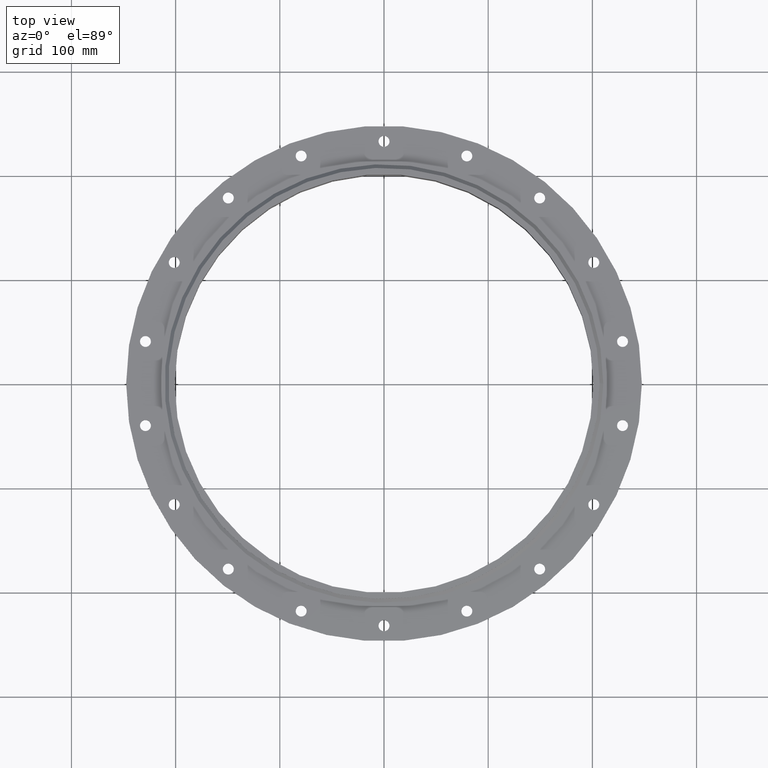
[diagram: clean part render]
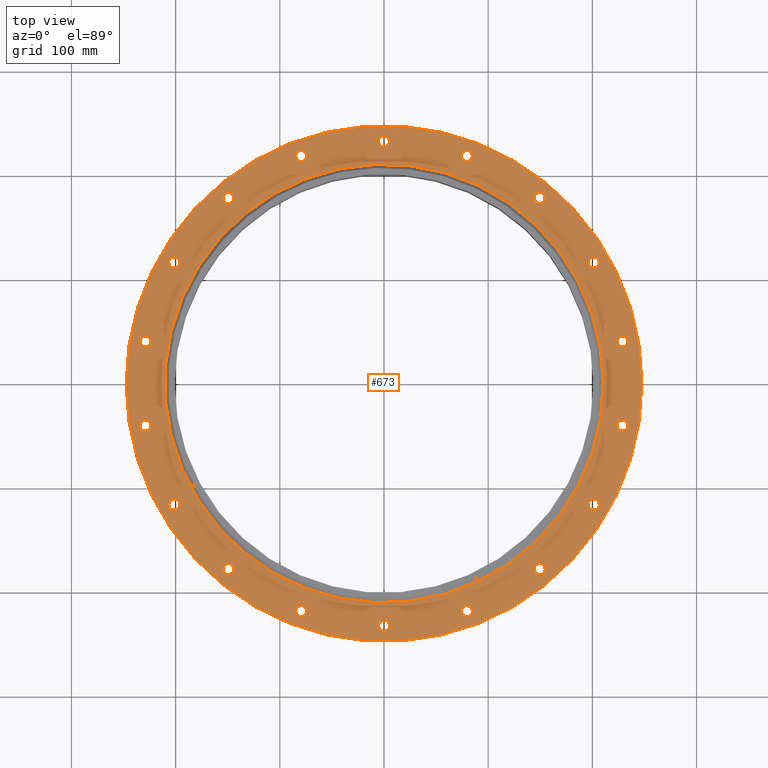
[diagram: same view with one face highlighted and labeled with its STEP entity id]
A machine part, top view. The second image highlights one B-rep face of the part: STEP entity #673.
In plain terms, the highlighted planar face has unit normal (0, 0, 1).
Its self-contained STEP definition (entity closure, byte-faithful):
#84=CARTESIAN_POINT('',(-144.19811925212042,178.10533302516245,-6.000000000000002));
#85=VERTEX_POINT('',#84);
#86=CARTESIAN_POINT('',(-149.44811925212042,178.10533302516245,-5.999999999999943));
#87=DIRECTION('',(0.0,0.0,-1.0));
#88=DIRECTION('',(1.0,0.0,0.0));
#89=AXIS2_PLACEMENT_3D('',#86,#87,#88);
#90=CIRCLE('',#89,5.25);
#91=EDGE_CURVE('',#85,#85,#90,.T.);
#112=CARTESIAN_POINT('',(-223.7178025753384,40.373201307561331,-6.000000000000002));
#113=VERTEX_POINT('',#112);
#114=CARTESIAN_POINT('',(-228.96780257533837,40.373201307561331,-5.999999999999943));
#115=DIRECTION('',(0.0,0.0,-1.0));
#116=DIRECTION('',(1.0,0.0,0.0));
#117=AXIS2_PLACEMENT_3D('',#114,#115,#116);
#118=CIRCLE('',#117,5.25);
#119=EDGE_CURVE('',#113,#113,#118,.T.);
#140=CARTESIAN_POINT('',(-196.1009063798821,-116.24999999999997,-6.000000000000002));
#141=VERTEX_POINT('',#140);
#142=CARTESIAN_POINT('',(-201.3509063798821,-116.24999999999997,-5.999999999999943));
#143=DIRECTION('',(0.0,0.0,-1.0));
#144=DIRECTION('',(1.0,0.0,0.0));
#145=AXIS2_PLACEMENT_3D('',#142,#143,#144);
#146=CIRCLE('',#145,5.25);
#147=EDGE_CURVE('',#141,#141,#146,.T.);
#168=CARTESIAN_POINT('',(-74.269683323218061,-218.47853433272365,-6.000000000000002));
#169=VERTEX_POINT('',#168);
#170=CARTESIAN_POINT('',(-79.519683323218061,-218.47853433272365,-5.999999999999943));
#171=DIRECTION('',(0.0,0.0,-1.0));
#172=DIRECTION('',(1.0,0.0,0.0));
#173=AXIS2_PLACEMENT_3D('',#170,#171,#172);
#174=CIRCLE('',#173,5.25);
#175=EDGE_CURVE('',#169,#169,#174,.T.);
#196=CARTESIAN_POINT('',(84.769683323217947,-218.47853433272365,-6.000000000000002));
#197=VERTEX_POINT('',#196);
#198=CARTESIAN_POINT('',(79.519683323217947,-218.47853433272365,-5.999999999999943));
#199=DIRECTION('',(0.0,0.0,-1.0));
#200=DIRECTION('',(1.0,0.0,0.0));
#201=AXIS2_PLACEMENT_3D('',#198,#199,#200);
#202=CIRCLE('',#201,5.25);
#203=EDGE_CURVE('',#197,#197,#202,.T.);
#224=CARTESIAN_POINT('',(206.60090637988202,-116.25000000000014,-6.000000000000002));
#225=VERTEX_POINT('',#224);
#226=CARTESIAN_POINT('',(201.35090637988202,-116.25000000000014,-5.999999999999943));
#227=DIRECTION('',(0.0,0.0,-1.0));
#228=DIRECTION('',(1.0,0.0,0.0));
#229=AXIS2_PLACEMENT_3D('',#226,#227,#228);
#230=CIRCLE('',#229,5.25);
#231=EDGE_CURVE('',#225,#225,#230,.T.);
#252=CARTESIAN_POINT('',(234.21780257533837,40.373201307561246,-6.000000000000002));
#253=VERTEX_POINT('',#252);
#254=CARTESIAN_POINT('',(228.96780257533837,40.373201307561246,-5.999999999999943));
#255=DIRECTION('',(0.0,0.0,-1.0));
#256=DIRECTION('',(1.0,0.0,0.0));
#257=AXIS2_PLACEMENT_3D('',#254,#255,#256);
#258=CIRCLE('',#257,5.25);
#259=EDGE_CURVE('',#253,#253,#258,.T.);
#280=CARTESIAN_POINT('',(154.69811925212045,178.10533302516234,-6.000000000000002));
#281=VERTEX_POINT('',#280);
#282=CARTESIAN_POINT('',(149.44811925212042,178.10533302516234,-5.999999999999943));
#283=DIRECTION('',(0.0,0.0,-1.0));
#284=DIRECTION('',(1.0,0.0,0.0));
#285=AXIS2_PLACEMENT_3D('',#282,#283,#284);
#286=CIRCLE('',#285,5.25);
#287=EDGE_CURVE('',#281,#281,#286,.T.);
#308=CARTESIAN_POINT('',(5.25,232.5,-6.000000000000002));
#309=VERTEX_POINT('',#308);
#310=CARTESIAN_POINT('',(0.0,232.5,-5.999999999999943));
#311=DIRECTION('',(0.0,0.0,-1.0));
#312=DIRECTION('',(1.0,0.0,0.0));
#313=AXIS2_PLACEMENT_3D('',#310,#311,#312);
#314=CIRCLE('',#313,5.25);
#315=EDGE_CURVE('',#309,#309,#314,.T.);
#336=CARTESIAN_POINT('',(84.769683323218118,218.47853433272365,-6.000000000000002));
#337=VERTEX_POINT('',#336);
#338=CARTESIAN_POINT('',(79.519683323218118,218.47853433272365,-5.999999999999943));
#339=DIRECTION('',(0.0,0.0,-1.0));
#340=DIRECTION('',(1.0,0.0,0.0));
#341=AXIS2_PLACEMENT_3D('',#338,#339,#340);
#342=CIRCLE('',#341,5.25);
#343=EDGE_CURVE('',#337,#337,#342,.T.);
#364=CARTESIAN_POINT('',(206.60090637988202,116.25000000000006,-6.000000000000002));
#365=VERTEX_POINT('',#364);
#366=CARTESIAN_POINT('',(201.35090637988202,116.25000000000006,-5.999999999999943));
#367=DIRECTION('',(0.0,0.0,-1.0));
#368=DIRECTION('',(1.0,0.0,0.0));
#369=AXIS2_PLACEMENT_3D('',#366,#367,#368);
#370=CIRCLE('',#369,5.25);
#371=EDGE_CURVE('',#365,#365,#370,.T.);
#392=CARTESIAN_POINT('',(234.21780257533837,-40.373201307561295,-6.000000000000002));
#393=VERTEX_POINT('',#392);
#394=CARTESIAN_POINT('',(228.96780257533837,-40.373201307561295,-5.999999999999943));
#395=DIRECTION('',(0.0,0.0,-1.0));
#396=DIRECTION('',(1.0,0.0,0.0));
#397=AXIS2_PLACEMENT_3D('',#394,#395,#396);
#398=CIRCLE('',#397,5.25);
#399=EDGE_CURVE('',#393,#393,#398,.T.);
#420=CARTESIAN_POINT('',(154.69811925212045,-178.10533302516245,-6.000000000000002));
#421=VERTEX_POINT('',#420);
#422=CARTESIAN_POINT('',(149.44811925212042,-178.10533302516245,-5.999999999999943));
#423=DIRECTION('',(0.0,0.0,-1.0));
#424=DIRECTION('',(1.0,0.0,0.0));
#425=AXIS2_PLACEMENT_3D('',#422,#423,#424);
#426=CIRCLE('',#425,5.25);
#427=EDGE_CURVE('',#421,#421,#426,.T.);
#448=CARTESIAN_POINT('',(5.249999999999973,-232.5,-6.000000000000002));
#449=VERTEX_POINT('',#448);
#450=CARTESIAN_POINT('',(-2.664535E-014,-232.5,-5.999999999999943));
#451=DIRECTION('',(0.0,0.0,-1.0));
#452=DIRECTION('',(1.0,0.0,0.0));
#453=AXIS2_PLACEMENT_3D('',#450,#451,#452);
#454=CIRCLE('',#453,5.25);
#455=EDGE_CURVE('',#449,#449,#454,.T.);
#476=CARTESIAN_POINT('',(-144.19811925212042,-178.10533302516237,-6.000000000000002));
#477=VERTEX_POINT('',#476);
#478=CARTESIAN_POINT('',(-149.44811925212042,-178.10533302516237,-5.999999999999943));
#479=DIRECTION('',(0.0,0.0,-1.0));
#480=DIRECTION('',(1.0,0.0,0.0));
#481=AXIS2_PLACEMENT_3D('',#478,#479,#480);
#482=CIRCLE('',#481,5.25);
#483=EDGE_CURVE('',#477,#477,#482,.T.);
#504=CARTESIAN_POINT('',(-223.7178025753384,-40.373201307561295,-6.000000000000002));
#505=VERTEX_POINT('',#504);
#506=CARTESIAN_POINT('',(-228.96780257533837,-40.373201307561295,-5.999999999999943));
#507=DIRECTION('',(0.0,0.0,-1.0));
#508=DIRECTION('',(1.0,0.0,0.0));
#509=AXIS2_PLACEMENT_3D('',#506,#507,#508);
#510=CIRCLE('',#509,5.25);
#511=EDGE_CURVE('',#505,#505,#510,.T.);
#532=CARTESIAN_POINT('',(-196.10090637988205,116.25000000000006,-6.000000000000002));
#533=VERTEX_POINT('',#532);
#534=CARTESIAN_POINT('',(-201.35090637988202,116.25000000000006,-5.999999999999943));
#535=DIRECTION('',(0.0,0.0,-1.0));
#536=DIRECTION('',(1.0,0.0,0.0));
#537=AXIS2_PLACEMENT_3D('',#534,#535,#536);
#538=CIRCLE('',#537,5.25);
#539=EDGE_CURVE('',#533,#533,#538,.T.);
#560=CARTESIAN_POINT('',(-74.269683323217961,218.47853433272365,-6.000000000000002));
#561=VERTEX_POINT('',#560);
#562=CARTESIAN_POINT('',(-79.519683323217961,218.47853433272365,-5.999999999999943));
#563=DIRECTION('',(0.0,0.0,-1.0));
#564=DIRECTION('',(1.0,0.0,0.0));
#565=AXIS2_PLACEMENT_3D('',#562,#563,#564);
#566=CIRCLE('',#565,5.25);
#567=EDGE_CURVE('',#561,#561,#566,.T.);
#577=CARTESIAN_POINT('',(210.50000000000011,2.577882E-014,-6.000000000000002));
#578=VERTEX_POINT('',#577);
#579=CARTESIAN_POINT('',(0.0,0.0,-6.000000000000002));
#580=DIRECTION('',(0.0,0.0,1.0));
#581=DIRECTION('',(-1.0,0.0,0.0));
#582=AXIS2_PLACEMENT_3D('',#579,#580,#581);
#583=CIRCLE('',#582,210.50000000000011);
#584=EDGE_CURVE('',#578,#578,#583,.T.);
#600=CARTESIAN_POINT('',(-1.783719E-014,0.0,-6.000000000000002));
#601=DIRECTION('',(0.0,0.0,1.0));
#602=DIRECTION('',(1.0,0.0,0.0));
#603=AXIS2_PLACEMENT_3D('',#600,#601,#602);
#604=PLANE('',#603);
#605=CARTESIAN_POINT('',(247.5,3.031001E-014,-6.000000000000002));
#606=VERTEX_POINT('',#605);
#607=CARTESIAN_POINT('',(0.0,0.0,-6.000000000000002));
#608=DIRECTION('',(0.0,0.0,1.0));
#609=DIRECTION('',(-1.0,0.0,0.0));
#610=AXIS2_PLACEMENT_3D('',#607,#608,#609);
#611=CIRCLE('',#610,247.5);
#612=EDGE_CURVE('',#606,#606,#611,.T.);
#613=ORIENTED_EDGE('',*,*,#612,.T.);
#614=EDGE_LOOP('',(#613));
#615=FACE_OUTER_BOUND('',#614,.T.);
#616=ORIENTED_EDGE('',*,*,#91,.T.);
#617=EDGE_LOOP('',(#616));
#618=FACE_BOUND('',#617,.T.);
#619=ORIENTED_EDGE('',*,*,#119,.T.);
#620=EDGE_LOOP('',(#619));
#621=FACE_BOUND('',#620,.T.);
#622=ORIENTED_EDGE('',*,*,#147,.T.);
#623=EDGE_LOOP('',(#622));
#624=FACE_BOUND('',#623,.T.);
#625=ORIENTED_EDGE('',*,*,#175,.T.);
#626=EDGE_LOOP('',(#625));
#627=FACE_BOUND('',#626,.T.);
#628=ORIENTED_EDGE('',*,*,#203,.T.);
#629=EDGE_LOOP('',(#628));
#630=FACE_BOUND('',#629,.T.);
#631=ORIENTED_EDGE('',*,*,#231,.T.);
#632=EDGE_LOOP('',(#631));
#633=FACE_BOUND('',#632,.T.);
#634=ORIENTED_EDGE('',*,*,#259,.T.);
#635=EDGE_LOOP('',(#634));
#636=FACE_BOUND('',#635,.T.);
#637=ORIENTED_EDGE('',*,*,#287,.T.);
#638=EDGE_LOOP('',(#637));
#639=FACE_BOUND('',#638,.T.);
#640=ORIENTED_EDGE('',*,*,#315,.T.);
#641=EDGE_LOOP('',(#640));
#642=FACE_BOUND('',#641,.T.);
#643=ORIENTED_EDGE('',*,*,#343,.T.);
#644=EDGE_LOOP('',(#643));
#645=FACE_BOUND('',#644,.T.);
#646=ORIENTED_EDGE('',*,*,#371,.T.);
#647=EDGE_LOOP('',(#646));
#648=FACE_BOUND('',#647,.T.);
#649=ORIENTED_EDGE('',*,*,#399,.T.);
#650=EDGE_LOOP('',(#649));
#651=FACE_BOUND('',#650,.T.);
#652=ORIENTED_EDGE('',*,*,#427,.T.);
#653=EDGE_LOOP('',(#652));
#654=FACE_BOUND('',#653,.T.);
#655=ORIENTED_EDGE('',*,*,#455,.T.);
#656=EDGE_LOOP('',(#655));
#657=FACE_BOUND('',#656,.T.);
#658=ORIENTED_EDGE('',*,*,#483,.T.);
#659=EDGE_LOOP('',(#658));
#660=FACE_BOUND('',#659,.T.);
#661=ORIENTED_EDGE('',*,*,#511,.T.);
#662=EDGE_LOOP('',(#661));
#663=FACE_BOUND('',#662,.T.);
#664=ORIENTED_EDGE('',*,*,#539,.T.);
#665=EDGE_LOOP('',(#664));
#666=FACE_BOUND('',#665,.T.);
#667=ORIENTED_EDGE('',*,*,#567,.T.);
#668=EDGE_LOOP('',(#667));
#669=FACE_BOUND('',#668,.T.);
#670=ORIENTED_EDGE('',*,*,#584,.F.);
#671=EDGE_LOOP('',(#670));
#672=FACE_BOUND('',#671,.T.);
#673=ADVANCED_FACE('',(#615,#618,#621,#624,#627,#630,#633,#636,#639,#642,#645,#648,#651,#654,#657,#660,#663,#666,#669,#672),#604,.T.);